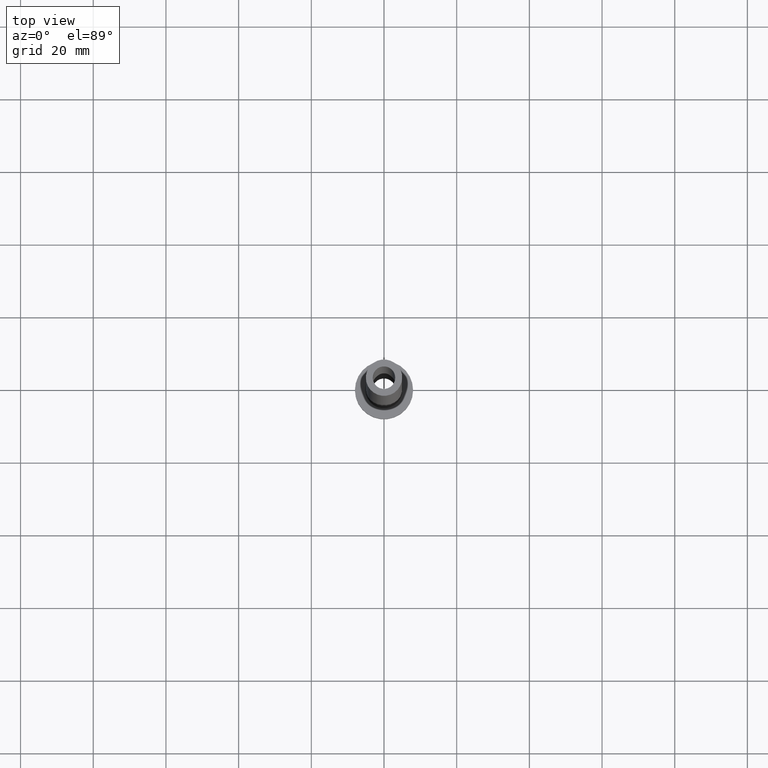
[diagram: clean part render]
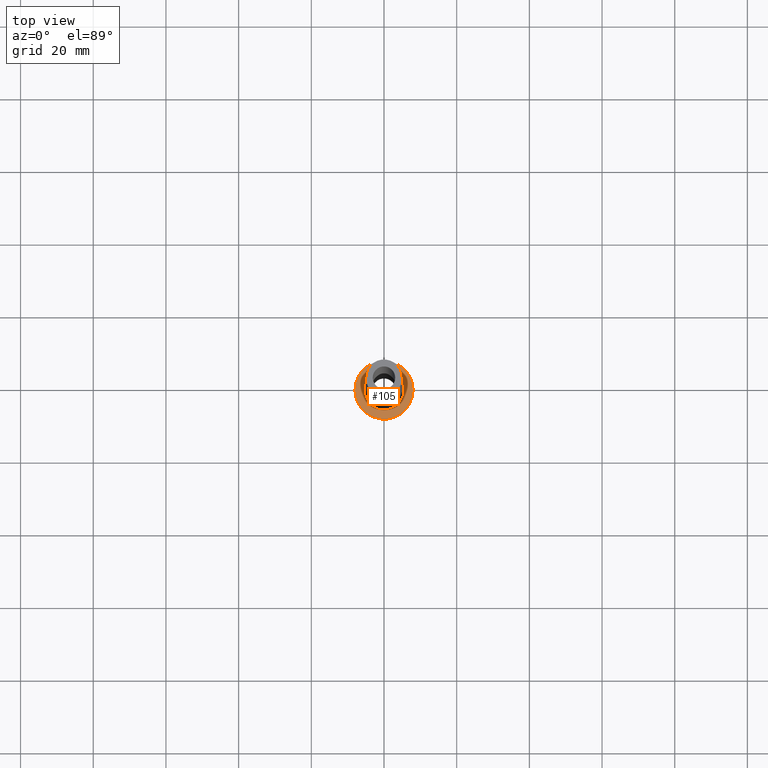
[diagram: same view with one face highlighted and labeled with its STEP entity id]
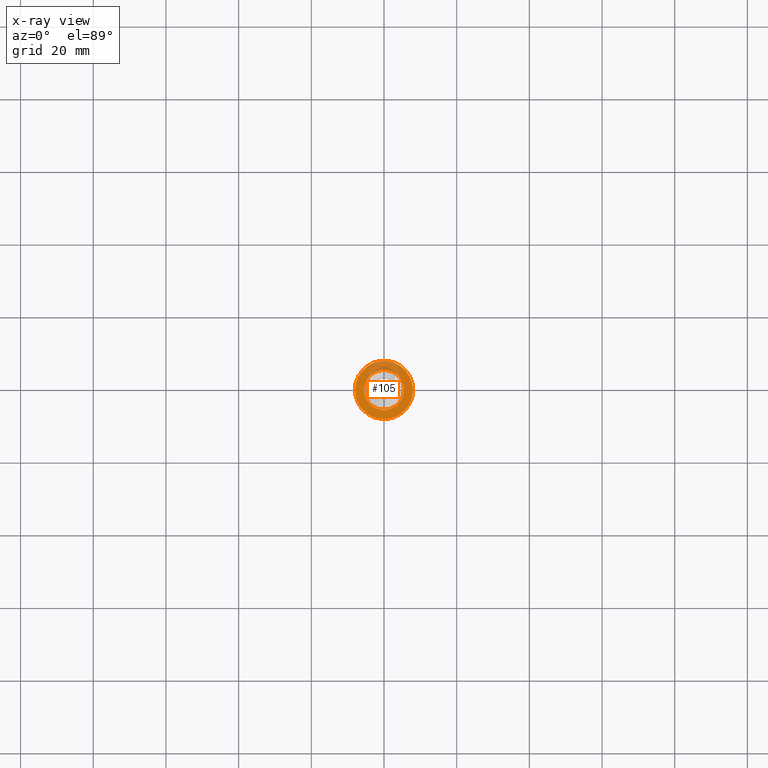
[diagram: x-ray of the same camera — body ghosted, the highlighted face saturated]
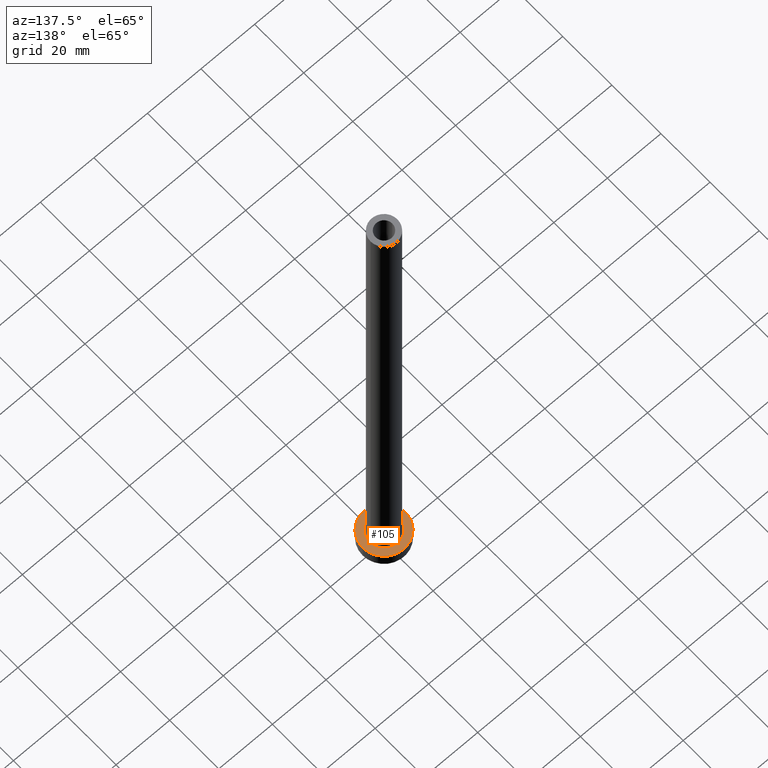
[diagram: same view with one face highlighted and labeled with its STEP entity id]
A machine part, top view. The second image highlights one B-rep face of the part: STEP entity #105.
The next image is the same camera in x-ray: the body ghosted, the highlighted face saturated — about 24% of this face is hidden behind the body in this view.
A second angle (auxiliary view) of the same face is appended — the face is thin or edge-on in the first view.
In plain terms, the highlighted planar face has unit normal (0, 0, 1).
Its self-contained STEP definition (entity closure, byte-faithful):
#2 = DIRECTION ( 'NONE',  ( 1.000000000000000000, 0.000000000000000000, 0.000000000000000000 ) ) ;
#16 = CARTESIAN_POINT ( 'NONE',  ( 0.000000000000000000, 0.000000000000000000, 5.000000000000000000 ) ) ;
#32 = CIRCLE ( 'NONE', #176, 8.000000000000000000 ) ;
#37 = ORIENTED_EDGE ( 'NONE', *, *, #57, .T. ) ;
#38 = DIRECTION ( 'NONE',  ( 0.000000000000000000, 0.000000000000000000, 1.000000000000000000 ) ) ;
#53 = CARTESIAN_POINT ( 'NONE',  ( 0.000000000000000000, 0.000000000000000000, 5.000000000000000000 ) ) ;
#55 = VERTEX_POINT ( 'NONE', #447 ) ;
#57 = EDGE_CURVE ( 'NONE', #112, #216, #212, .T. ) ;
#63 = DIRECTION ( 'NONE',  ( 0.000000000000000000, 0.000000000000000000, 1.000000000000000000 ) ) ;
#68 = EDGE_LOOP ( 'NONE', ( #37, #78 ) ) ;
#78 = ORIENTED_EDGE ( 'NONE', *, *, #211, .T. ) ;
#83 = CARTESIAN_POINT ( 'NONE',  ( 0.000000000000000000, 0.000000000000000000, 5.000000000000000000 ) ) ;
#87 = FACE_OUTER_BOUND ( 'NONE', #315, .T. ) ;
#92 = CARTESIAN_POINT ( 'NONE',  ( 8.000000000000000000, 9.797174393178825657E-16, 5.000000000000000000 ) ) ;
#105 = ADVANCED_FACE ( 'NONE', ( #376, #87 ), #221, .T. ) ;
#112 = VERTEX_POINT ( 'NONE', #412 ) ;
#125 = CARTESIAN_POINT ( 'NONE',  ( 0.000000000000000000, 0.000000000000000000, 5.000000000000000000 ) ) ;
#126 = DIRECTION ( 'NONE',  ( 1.000000000000000000, 0.000000000000000000, 0.000000000000000000 ) ) ;
#143 = DIRECTION ( 'NONE',  ( -0.000000000000000000, -0.000000000000000000, -1.000000000000000000 ) ) ;
#168 = AXIS2_PLACEMENT_3D ( 'NONE', #53, #187, #300 ) ;
#174 = CARTESIAN_POINT ( 'NONE',  ( -5.500000000000000000, 6.735557395310442023E-16, 5.000000000000002665 ) ) ;
#176 = AXIS2_PLACEMENT_3D ( 'NONE', #437, #38, #326 ) ;
#184 = AXIS2_PLACEMENT_3D ( 'NONE', #83, #143, #2 ) ;
#187 = DIRECTION ( 'NONE',  ( 0.000000000000000000, 0.000000000000000000, 1.000000000000000000 ) ) ;
#211 = EDGE_CURVE ( 'NONE', #216, #112, #394, .T. ) ;
#212 = CIRCLE ( 'NONE', #459, 5.500000000000000000 ) ;
#216 = VERTEX_POINT ( 'NONE', #174 ) ;
#221 = PLANE ( 'NONE',  #168 ) ;
#247 = AXIS2_PLACEMENT_3D ( 'NONE', #125, #63, #305 ) ;
#276 = EDGE_CURVE ( 'NONE', #369, #55, #32, .T. ) ;
#300 = DIRECTION ( 'NONE',  ( 1.000000000000000000, 0.000000000000000000, -0.000000000000000000 ) ) ;
#305 = DIRECTION ( 'NONE',  ( 1.000000000000000000, 0.000000000000000000, 0.000000000000000000 ) ) ;
#315 = EDGE_LOOP ( 'NONE', ( #389, #425 ) ) ;
#326 = DIRECTION ( 'NONE',  ( 1.000000000000000000, 0.000000000000000000, 0.000000000000000000 ) ) ;
#334 = DIRECTION ( 'NONE',  ( -0.000000000000000000, -0.000000000000000000, -1.000000000000000000 ) ) ;
#369 = VERTEX_POINT ( 'NONE', #92 ) ;
#376 = FACE_BOUND ( 'NONE', #68, .T. ) ;
#389 = ORIENTED_EDGE ( 'NONE', *, *, #440, .T. ) ;
#394 = CIRCLE ( 'NONE', #184, 5.500000000000000000 ) ;
#412 = CARTESIAN_POINT ( 'NONE',  ( 5.500000000000000000, 0.000000000000000000, 5.000000000000002665 ) ) ;
#417 = CIRCLE ( 'NONE', #247, 8.000000000000000000 ) ;
#425 = ORIENTED_EDGE ( 'NONE', *, *, #276, .T. ) ;
#437 = CARTESIAN_POINT ( 'NONE',  ( 0.000000000000000000, 0.000000000000000000, 5.000000000000000000 ) ) ;
#440 = EDGE_CURVE ( 'NONE', #55, #369, #417, .T. ) ;
#447 = CARTESIAN_POINT ( 'NONE',  ( -8.000000000000000000, 0.000000000000000000, 5.000000000000000000 ) ) ;
#459 = AXIS2_PLACEMENT_3D ( 'NONE', #16, #334, #126 ) ;